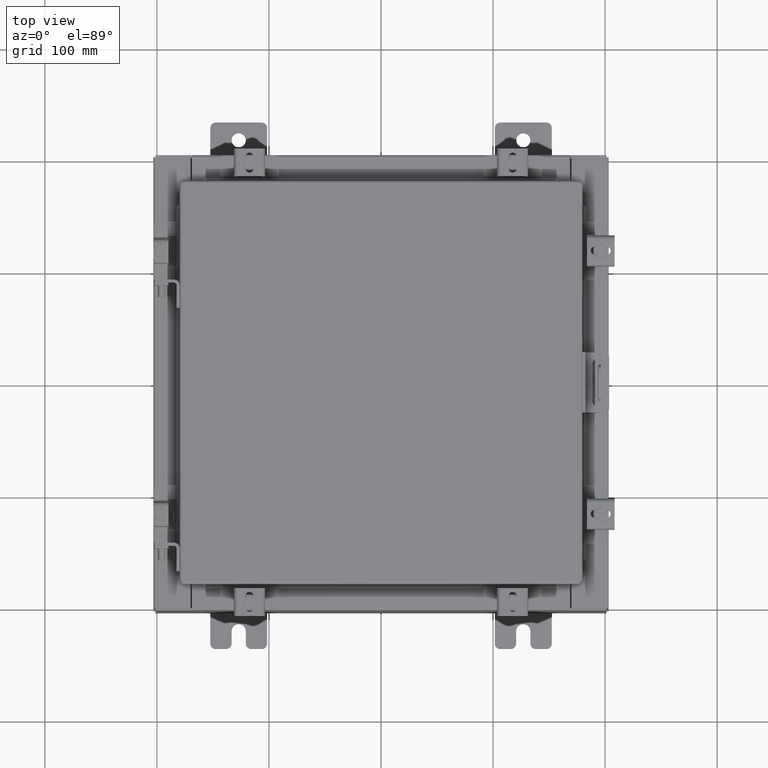
[diagram: clean part render]
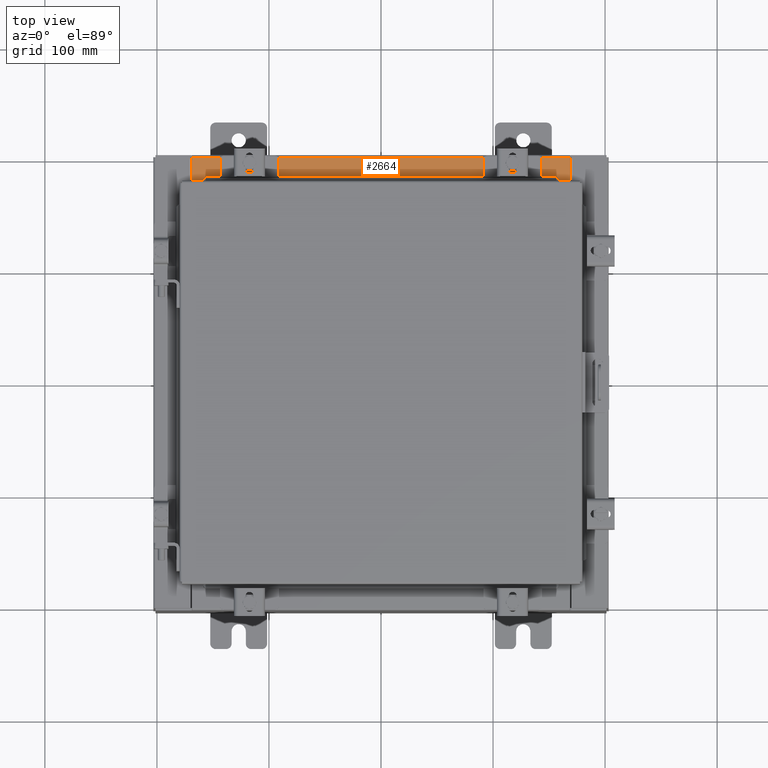
[diagram: same view with one face highlighted and labeled with its STEP entity id]
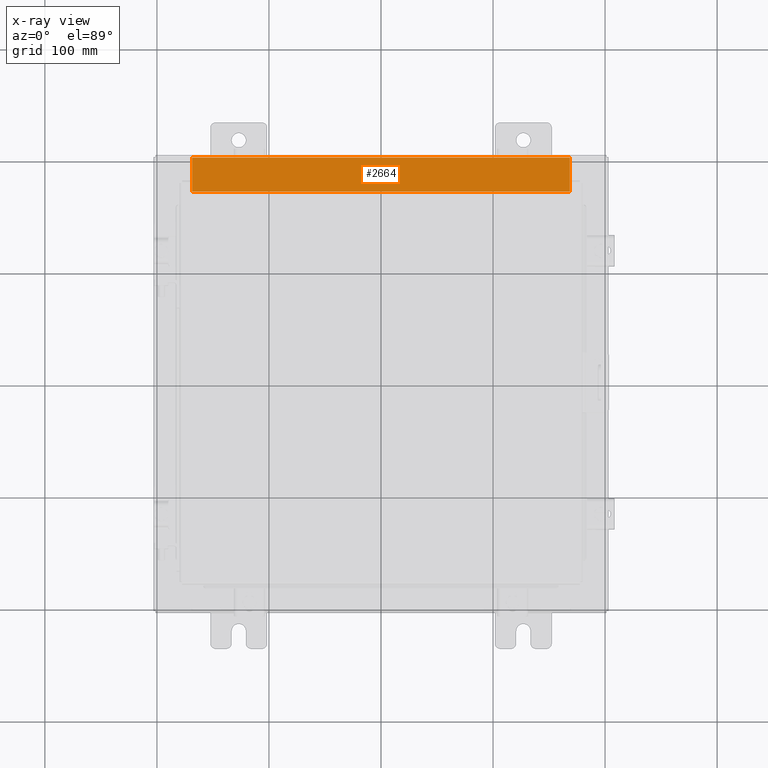
[diagram: x-ray of the same camera — body ghosted, the highlighted face saturated]
A machine part, top view. The second image highlights one B-rep face of the part: STEP entity #2664.
The next image is the same camera in x-ray: the body ghosted, the highlighted face saturated — about 0% of this face is hidden behind the body in this view.
In plain terms, the highlighted planar face has unit normal (0, 0, 1).
Its self-contained STEP definition (entity closure, byte-faithful):
#69 = LINE ( 'NONE', #15286, #5380 ) ;
#227 = EDGE_CURVE ( 'NONE', #3890, #14146, #69, .T. ) ;
#2015 = CARTESIAN_POINT ( 'NONE',  ( 6.637199999999999100, -0.08769999999999993100, 3.000000000000000900 ) ) ;
#2345 = VERTEX_POINT ( 'NONE', #2015 ) ;
#2664 = ADVANCED_FACE ( 'NONE', ( #11968 ), #7788, .T. ) ;
#2787 = CARTESIAN_POINT ( 'NONE',  ( 0.0000000000000000000, 1.069354855923099900E-014, 3.000000000000000900 ) ) ;
#3656 = EDGE_CURVE ( 'NONE', #2345, #3890, #18747, .T. ) ;
#3890 = VERTEX_POINT ( 'NONE', #16487 ) ;
#4124 = DIRECTION ( 'NONE',  ( -0.0000000000000000000, -1.000000000000000000, 3.566381192773190000E-015 ) ) ;
#4313 = ORIENTED_EDGE ( 'NONE', *, *, #3656, .F. ) ;
#5012 = CARTESIAN_POINT ( 'NONE',  ( -6.637200000000000000, -0.08770000000000026400, 3.000000000000000900 ) ) ;
#5042 = VECTOR ( 'NONE', #11108, 39.37007874015748100 ) ;
#5116 = CARTESIAN_POINT ( 'NONE',  ( 0.0000000000000000000, -0.08770000000000026400, 3.000000000000001300 ) ) ;
#5380 = VECTOR ( 'NONE', #7979, 39.37007874015748100 ) ;
#5672 = ORIENTED_EDGE ( 'NONE', *, *, #8015, .F. ) ;
#6456 = CARTESIAN_POINT ( 'NONE',  ( 6.637200000000000000, -1.300299999999999800, 3.000000000000005300 ) ) ;
#6774 = DIRECTION ( 'NONE',  ( -1.000000000000000000, 0.0000000000000000000, 0.0000000000000000000 ) ) ;
#7788 = PLANE ( 'NONE',  #19984 ) ;
#7979 = DIRECTION ( 'NONE',  ( -1.000000000000000000, 0.0000000000000000000, 0.0000000000000000000 ) ) ;
#8015 = EDGE_CURVE ( 'NONE', #14146, #8414, #13592, .T. ) ;
#8414 = VERTEX_POINT ( 'NONE', #5012 ) ;
#9355 = DIRECTION ( 'NONE',  ( 0.0000000000000000000, 3.566381192773190000E-015, 1.000000000000000000 ) ) ;
#9562 = EDGE_CURVE ( 'NONE', #2345, #8414, #19082, .T. ) ;
#11108 = DIRECTION ( 'NONE',  ( -0.0000000000000000000, 1.000000000000000000, -3.566381192773190000E-015 ) ) ;
#11968 = FACE_OUTER_BOUND ( 'NONE', #14203, .T. ) ;
#13592 = LINE ( 'NONE', #14316, #5042 ) ;
#14146 = VERTEX_POINT ( 'NONE', #16202 ) ;
#14203 = EDGE_LOOP ( 'NONE', ( #5672, #15836, #4313, #17803 ) ) ;
#14316 = CARTESIAN_POINT ( 'NONE',  ( -6.637200000000000000, -0.07469999999999973900, 3.000000000000000900 ) ) ;
#15286 = CARTESIAN_POINT ( 'NONE',  ( 6.637200000000000900, -1.287299999999999900, 3.000000000000005300 ) ) ;
#15836 = ORIENTED_EDGE ( 'NONE', *, *, #227, .F. ) ;
#16202 = CARTESIAN_POINT ( 'NONE',  ( -6.637200000000000000, -1.287299999999999200, 3.000000000000005300 ) ) ;
#16487 = CARTESIAN_POINT ( 'NONE',  ( 6.637200000000000000, -1.287299999999999900, 3.000000000000005300 ) ) ;
#17803 = ORIENTED_EDGE ( 'NONE', *, *, #9562, .T. ) ;
#18075 = VECTOR ( 'NONE', #6774, 39.37007874015748100 ) ;
#18241 = VECTOR ( 'NONE', #4124, 39.37007874015748100 ) ;
#18747 = LINE ( 'NONE', #6456, #18241 ) ;
#19082 = LINE ( 'NONE', #5116, #18075 ) ;
#19984 = AXIS2_PLACEMENT_3D ( 'NONE', #2787, #9355, #20594 ) ;
#20594 = DIRECTION ( 'NONE',  ( 0.0000000000000000000, -1.000000000000000000, 3.566381192773190000E-015 ) ) ;